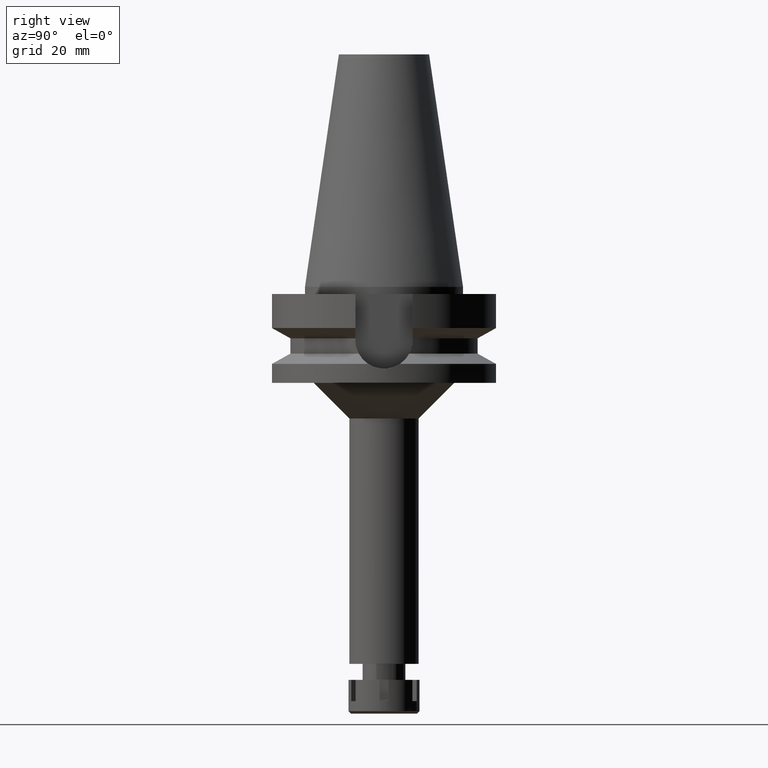
[diagram: clean part render]
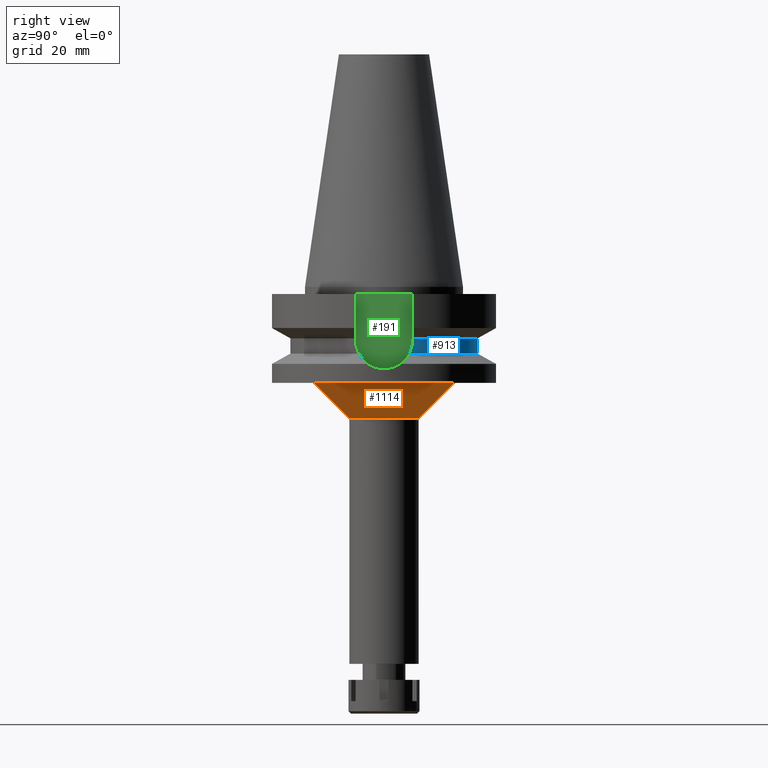
[diagram: same view with three faces highlighted in distinct colors, each labeled with its STEP entity id]
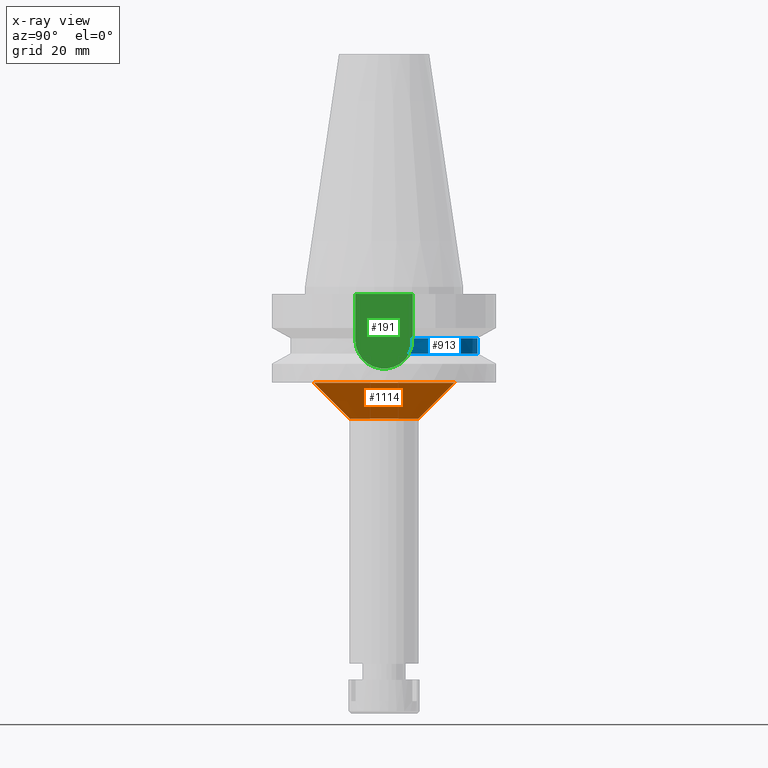
[diagram: x-ray of the same camera — body ghosted, the three highlighted faces saturated]
A machine part, right view with three faces highlighted in distinct colors.
The next image is the same camera in x-ray (body ghosted, the three faces saturated) — at least one of them is partly hidden behind the body in this view.
Their STEP definitions:

[orange] entity #1114 — the highlighted conical surface has half-angle 45 deg.
#105 = DIRECTION ( 'NONE',  ( 0.0000000000000000000, 0.0000000000000000000, 1.000000000000000000 ) ) ;
#122 = DIRECTION ( 'NONE',  ( 0.0000000000000000000, 1.000000000000000000, 0.0000000000000000000 ) ) ;
#162 = ORIENTED_EDGE ( 'NONE', *, *, #376, .T. ) ;
#190 = ORIENTED_EDGE ( 'NONE', *, *, #3637, .F. ) ;
#230 = CARTESIAN_POINT ( 'NONE',  ( 0.0000000000000000000, 0.0000000000000000000, -37.00000000000000000 ) ) ;
#365 = AXIS2_PLACEMENT_3D ( 'NONE', #2025, #3120, #2288 ) ;
#376 = EDGE_CURVE ( 'NONE', #1575, #1541, #1160, .T. ) ;
#463 = EDGE_CURVE ( 'NONE', #2571, #2239, #1796, .T. ) ;
#536 = CIRCLE ( 'NONE', #365, 19.75000000000000000 ) ;
#624 = VECTOR ( 'NONE', #664, 1000.000000000000114 ) ;
#646 = CARTESIAN_POINT ( 'NONE',  ( 0.0000000000000000000, 19.75000000000000000, -27.00000000000000000 ) ) ;
#664 = DIRECTION ( 'NONE',  ( 0.0000000000000000000, 0.7071067811865474617, -0.7071067811865474617 ) ) ;
#703 = EDGE_LOOP ( 'NONE', ( #907, #162, #190, #3432 ) ) ;
#790 = CARTESIAN_POINT ( 'NONE',  ( 0.0000000000000000000, 9.750000000000000000, -37.00000000000000000 ) ) ;
#801 = AXIS2_PLACEMENT_3D ( 'NONE', #3493, #105, #122 ) ;
#907 = ORIENTED_EDGE ( 'NONE', *, *, #2608, .T. ) ;
#1114 = ADVANCED_FACE ( 'NONE', ( #2649 ), #1870, .T. ) ;
#1160 = LINE ( 'NONE', #3145, #624 ) ;
#1215 = CIRCLE ( 'NONE', #2675, 9.750000000000000000 ) ;
#1541 = VERTEX_POINT ( 'NONE', #2778 ) ;
#1575 = VERTEX_POINT ( 'NONE', #2196 ) ;
#1753 = VECTOR ( 'NONE', #1779, 1000.000000000000114 ) ;
#1779 = DIRECTION ( 'NONE',  ( 0.0000000000000000000, -0.7071067811865474617, -0.7071067811865474617 ) ) ;
#1796 = LINE ( 'NONE', #646, #1753 ) ;
#1870 = CONICAL_SURFACE ( 'NONE', #801, 14.75000000000000000, 0.7853981633972997312 ) ;
#2025 = CARTESIAN_POINT ( 'NONE',  ( 0.0000000000000000000, 0.0000000000000000000, -27.00000000000000000 ) ) ;
#2196 = CARTESIAN_POINT ( 'NONE',  ( 0.0000000000000000000, -19.75000000000000000, -27.00000000000000000 ) ) ;
#2239 = VERTEX_POINT ( 'NONE', #790 ) ;
#2288 = DIRECTION ( 'NONE',  ( 0.0000000000000000000, 1.000000000000000000, 0.0000000000000000000 ) ) ;
#2463 = DIRECTION ( 'NONE',  ( 0.0000000000000000000, 0.0000000000000000000, -1.000000000000000000 ) ) ;
#2571 = VERTEX_POINT ( 'NONE', #2947 ) ;
#2608 = EDGE_CURVE ( 'NONE', #2571, #1575, #536, .T. ) ;
#2649 = FACE_OUTER_BOUND ( 'NONE', #703, .T. ) ;
#2675 = AXIS2_PLACEMENT_3D ( 'NONE', #230, #2463, #3288 ) ;
#2778 = CARTESIAN_POINT ( 'NONE',  ( 0.0000000000000000000, -9.750000000000000000, -37.00000000000000000 ) ) ;
#2947 = CARTESIAN_POINT ( 'NONE',  ( 0.0000000000000000000, 19.75000000000000000, -27.00000000000000000 ) ) ;
#3120 = DIRECTION ( 'NONE',  ( 0.0000000000000000000, 0.0000000000000000000, -1.000000000000000000 ) ) ;
#3145 = CARTESIAN_POINT ( 'NONE',  ( 0.0000000000000000000, -19.75000000000000000, -27.00000000000000000 ) ) ;
#3288 = DIRECTION ( 'NONE',  ( 0.0000000000000000000, 1.000000000000000000, 0.0000000000000000000 ) ) ;
#3432 = ORIENTED_EDGE ( 'NONE', *, *, #463, .F. ) ;
#3493 = CARTESIAN_POINT ( 'NONE',  ( 0.0000000000000000000, 0.0000000000000000000, -32.00000000000000000 ) ) ;
#3637 = EDGE_CURVE ( 'NONE', #2239, #1541, #1215, .T. ) ;

[blue] entity #913 — the highlighted cylindrical surface (partial cylindrical patch) has radius 26.5 mm, axis along (0, 0, -1).
#124 = CARTESIAN_POINT ( 'NONE',  ( 25.53175183775000079, 7.097862220092999941, -18.74774300138999905 ) ) ;
#126 = VERTEX_POINT ( 'NONE', #2870 ) ;
#154 = DIRECTION ( 'NONE',  ( 0.0000000000000000000, 0.0000000000000000000, 1.000000000000000000 ) ) ;
#218 = CARTESIAN_POINT ( 'NONE',  ( -25.30212858955025723, 7.877670097774115199, -16.61040846292341655 ) ) ;
#302 = ORIENTED_EDGE ( 'NONE', *, *, #2203, .F. ) ;
#339 = ORIENTED_EDGE ( 'NONE', *, *, #2919, .T. ) ;
#359 = VECTOR ( 'NONE', #2324, 1000.000000000000000 ) ;
#360 = VERTEX_POINT ( 'NONE', #1180 ) ;
#404 = CARTESIAN_POINT ( 'NONE',  ( 25.27269031700759783, 7.973298021050312379, -16.24529443263009654 ) ) ;
#420 = CARTESIAN_POINT ( 'NONE',  ( 25.24772266958000344, 8.050000000000000711, -14.94999999999999929 ) ) ;
#473 = CARTESIAN_POINT ( 'NONE',  ( 25.32549585278727022, 7.802104298501142843, -16.93243209947438643 ) ) ;
#502 = DIRECTION ( 'NONE',  ( 0.0000000000000000000, 1.000000000000000000, 0.0000000000000000000 ) ) ;
#512 = CARTESIAN_POINT ( 'NONE',  ( -25.24772266957999989, 8.050000000000016698, -15.26991016303403903 ) ) ;
#522 = VERTEX_POINT ( 'NONE', #2834 ) ;
#644 = EDGE_CURVE ( 'NONE', #522, #126, #1723, .T. ) ;
#660 = DIRECTION ( 'NONE',  ( 0.0000000000000000000, -1.000000000000000000, 0.0000000000000000000 ) ) ;
#756 = VERTEX_POINT ( 'NONE', #786 ) ;
#776 = LINE ( 'NONE', #2177, #2269 ) ;
#786 = CARTESIAN_POINT ( 'NONE',  ( -25.24772216384000245, 8.050001586170999701, -14.45224487886000020 ) ) ;
#828 = CIRCLE ( 'NONE', #2888, 26.50000000000000711 ) ;
#867 = CARTESIAN_POINT ( 'NONE',  ( -25.27268309164520232, 7.971812745166494629, -16.08115051879740420 ) ) ;
#913 = ADVANCED_FACE ( 'NONE', ( #2308 ), #2009, .T. ) ;
#1006 = CARTESIAN_POINT ( 'NONE',  ( 25.32418608982703390, 7.806352243999687524, -16.91565584311630488 ) ) ;
#1024 = CARTESIAN_POINT ( 'NONE',  ( 25.35411236305800031, 7.708864339760763684, -17.26996869602688278 ) ) ;
#1062 = CARTESIAN_POINT ( 'NONE',  ( -25.24772266958000344, 8.050000000000000711, -14.94999999999999929 ) ) ;
#1138 = CARTESIAN_POINT ( 'NONE',  ( -25.53175183775000079, 7.097862220092999941, -18.74774300138999905 ) ) ;
#1180 = CARTESIAN_POINT ( 'NONE',  ( -25.24772266958000344, 8.050000000000000711, -14.94999999999999929 ) ) ;
#1251 = CARTESIAN_POINT ( 'NONE',  ( 25.34387350812708206, 7.742366891136270191, -17.15655251595375219 ) ) ;
#1314 = DIRECTION ( 'NONE',  ( 0.0000000000000000000, 0.0000000000000000000, -1.000000000000000000 ) ) ;
#1346 = CARTESIAN_POINT ( 'NONE',  ( -25.43786288018555197, 7.435590607957213827, -18.11653926695827721 ) ) ;
#1354 = CARTESIAN_POINT ( 'NONE',  ( 0.0000000000000000000, 0.0000000000000000000, -18.74774300138999905 ) ) ;
#1416 = ORIENTED_EDGE ( 'NONE', *, *, #644, .F. ) ;
#1421 = CARTESIAN_POINT ( 'NONE',  ( -25.28048322354058541, 7.947042364867001218, -16.24399973113296980 ) ) ;
#1432 = CARTESIAN_POINT ( 'NONE',  ( 0.0000000000000000000, 2.136028947072999920E-14, 74.42000000000000171 ) ) ;
#1561 = CARTESIAN_POINT ( 'NONE',  ( 25.48481625423749364, 7.266694416798063827, -18.43220093598307230 ) ) ;
#1592 = CARTESIAN_POINT ( 'NONE',  ( -25.53175183775000079, 7.097862220092999941, -18.74774300138999905 ) ) ;
#1606 = DIRECTION ( 'NONE',  ( -1.016032954368006376E-06, -3.186650055620021452E-06, -0.9999999999944064744 ) ) ;
#1638 = EDGE_LOOP ( 'NONE', ( #3305, #2465, #1416, #339, #302, #2133 ) ) ;
#1641 = CARTESIAN_POINT ( 'NONE',  ( -25.31648570732018655, 7.831303109281309460, -16.81376729955617577 ) ) ;
#1700 = CARTESIAN_POINT ( 'NONE',  ( -25.32118071774171497, 7.816100027253767735, -16.87651110713343527 ) ) ;
#1723 = B_SPLINE_CURVE_WITH_KNOTS ( 'NONE', 3,
 ( #124, #1561, #2083, #2666, #3250, #1024, #1251, #2978, #2929, #473, #1006, #404, #2686, #420 ),
 .UNSPECIFIED., .F., .F.,
 ( 4, 2, 2, 1, 1, 2, 2, 4 ),
 ( 0.0000000000000000000, 0.2499999999999975575, 0.3749999999999975575, 0.4374999999999975575, 0.4687499999999987788, 0.4843749999999993339, 0.4999999999999998890, 1.000000000000000000 ),
 .UNSPECIFIED. ) ;
#1782 = AXIS2_PLACEMENT_3D ( 'NONE', #1354, #154, #502 ) ;
#1996 = CARTESIAN_POINT ( 'NONE',  ( -25.29452346095227000, 7.902092865024707535, -16.48827265652634111 ) ) ;
#2009 = CYLINDRICAL_SURFACE ( 'NONE', #2215, 26.50000000000000000 ) ;
#2047 = EDGE_CURVE ( 'NONE', #756, #360, #776, .T. ) ;
#2083 = CARTESIAN_POINT ( 'NONE',  ( 25.44392127699064332, 7.408263445652504053, -18.11704143288375946 ) ) ;
#2133 = ORIENTED_EDGE ( 'NONE', *, *, #2047, .F. ) ;
#2177 = CARTESIAN_POINT ( 'NONE',  ( -25.24772216384000245, 8.050001586170999701, -14.45224487886000020 ) ) ;
#2203 = EDGE_CURVE ( 'NONE', #360, #3443, #2669, .T. ) ;
#2215 = AXIS2_PLACEMENT_3D ( 'NONE', #1432, #2344, #660 ) ;
#2269 = VECTOR ( 'NONE', #1606, 1000.000000000000000 ) ;
#2308 = FACE_OUTER_BOUND ( 'NONE', #1638, .T. ) ;
#2324 = DIRECTION ( 'NONE',  ( 2.936640401732918858E-06, -9.210376286810746584E-06, 0.9999999999532726003 ) ) ;
#2344 = DIRECTION ( 'NONE',  ( 0.0000000000000000000, 0.0000000000000000000, -1.000000000000000000 ) ) ;
#2465 = ORIENTED_EDGE ( 'NONE', *, *, #2775, .F. ) ;
#2662 = CARTESIAN_POINT ( 'NONE',  ( 25.24772266958000344, 8.050000000000000711, -14.94999999999999929 ) ) ;
#2666 = CARTESIAN_POINT ( 'NONE',  ( 25.39163972051884244, 7.584838823501475424, -17.65189279967824376 ) ) ;
#2669 = B_SPLINE_CURVE_WITH_KNOTS ( 'NONE', 3,
 ( #1062, #512, #2741, #867, #1421, #1996, #218, #3088, #1641, #3330, #1700, #3052, #1346, #1138 ),
 .UNSPECIFIED., .F., .F.,
 ( 4, 2, 2, 1, 1, 2, 2, 4 ),
 ( 0.0000000000000000000, 0.2500000000000326406, 0.3750000000000489608, 0.4375000000000558997, 0.4687500000000580647, 0.4843750000000578426, 0.5000000000000576206, 1.000000000000000000 ),
 .UNSPECIFIED. ) ;
#2686 = CARTESIAN_POINT ( 'NONE',  ( 25.24772266957999989, 8.050000000000000711, -15.58995880478328999 ) ) ;
#2741 = CARTESIAN_POINT ( 'NONE',  ( -25.25396277509630139, 8.030907860997638537, -15.59359823559724312 ) ) ;
#2775 = EDGE_CURVE ( 'NONE', #126, #3234, #3177, .T. ) ;
#2834 = CARTESIAN_POINT ( 'NONE',  ( 25.53175183775000079, 7.097862220092999941, -18.74774300138999905 ) ) ;
#2870 = CARTESIAN_POINT ( 'NONE',  ( 25.24772266958000344, 8.050000000000000711, -14.94999999999999929 ) ) ;
#2888 = AXIS2_PLACEMENT_3D ( 'NONE', #3021, #1314, #2993 ) ;
#2899 = EDGE_CURVE ( 'NONE', #756, #3234, #828, .T. ) ;
#2919 = EDGE_CURVE ( 'NONE', #522, #3443, #3358, .T. ) ;
#2929 = CARTESIAN_POINT ( 'NONE',  ( 25.32843688206640920, 7.792560665373999385, -16.96962045696275467 ) ) ;
#2978 = CARTESIAN_POINT ( 'NONE',  ( 25.33291921433979610, 7.778007550393247094, -17.02550036343772888 ) ) ;
#2993 = DIRECTION ( 'NONE',  ( -0.9527442516822307583, 0.3037735849057093818, 0.0000000000000000000 ) ) ;
#3021 = CARTESIAN_POINT ( 'NONE',  ( 0.0000000000000000000, 1.065333950388000029E-14, -14.45225699861000024 ) ) ;
#3052 = CARTESIAN_POINT ( 'NONE',  ( -25.36814691286075529, 7.663833599064830970, -17.48802854141449359 ) ) ;
#3088 = CARTESIAN_POINT ( 'NONE',  ( -25.31202500689251522, 7.845732311882787968, -16.75278555880698406 ) ) ;
#3177 = LINE ( 'NONE', #2662, #359 ) ;
#3234 = VERTEX_POINT ( 'NONE', #3453 ) ;
#3250 = CARTESIAN_POINT ( 'NONE',  ( 25.37572268659466701, 7.637742846882907166, -17.49808964567741043 ) ) ;
#3305 = ORIENTED_EDGE ( 'NONE', *, *, #2899, .T. ) ;
#3330 = CARTESIAN_POINT ( 'NONE',  ( -25.31950825842965358, 7.821518470898141118, -16.85441217852998008 ) ) ;
#3358 = CIRCLE ( 'NONE', #1782, 26.50000000000000000 ) ;
#3443 = VERTEX_POINT ( 'NONE', #1592 ) ;
#3453 = CARTESIAN_POINT ( 'NONE',  ( 25.24772413117000269, 8.049995415921999964, -14.45229202694999948 ) ) ;

[green] entity #191 — the highlighted planar face has unit normal (1, 0, 0).
#27 = CARTESIAN_POINT ( 'NONE',  ( 22.50000000000000000, 0.0000000000000000000, 0.0000000000000000000 ) ) ;
#108 = VERTEX_POINT ( 'NONE', #3106 ) ;
#191 = ADVANCED_FACE ( 'NONE', ( #3384 ), #1456, .T. ) ;
#215 = EDGE_CURVE ( 'NONE', #3005, #3134, #2210, .T. ) ;
#296 = DIRECTION ( 'NONE',  ( -1.000000000000000000, 0.0000000000000000000, 0.0000000000000000000 ) ) ;
#306 = VECTOR ( 'NONE', #3007, 1000.000000000000000 ) ;
#357 = ORIENTED_EDGE ( 'NONE', *, *, #3011, .F. ) ;
#449 = LINE ( 'NONE', #1577, #306 ) ;
#555 = CIRCLE ( 'NONE', #856, 8.050000000000000711 ) ;
#587 = DIRECTION ( 'NONE',  ( 0.0000000000000000000, 1.000000000000000000, 0.0000000000000000000 ) ) ;
#707 = CARTESIAN_POINT ( 'NONE',  ( 22.50000000000000000, 8.050000000000000711, -14.94999999999999929 ) ) ;
#766 = EDGE_LOOP ( 'NONE', ( #357, #2173, #3020, #834 ) ) ;
#834 = ORIENTED_EDGE ( 'NONE', *, *, #215, .T. ) ;
#844 = DIRECTION ( 'NONE',  ( 1.000000000000000000, 0.0000000000000000000, 0.0000000000000000000 ) ) ;
#856 = AXIS2_PLACEMENT_3D ( 'NONE', #3368, #296, #2795 ) ;
#1437 = EDGE_CURVE ( 'NONE', #3005, #2021, #2682, .T. ) ;
#1449 = CARTESIAN_POINT ( 'NONE',  ( 22.50000000000000000, -8.050000000000000711, -2.000000000000000000 ) ) ;
#1456 = PLANE ( 'NONE',  #1509 ) ;
#1509 = AXIS2_PLACEMENT_3D ( 'NONE', #27, #844, #587 ) ;
#1577 = CARTESIAN_POINT ( 'NONE',  ( 22.50000000000000000, -8.050000000000000711, -14.94999999999999929 ) ) ;
#1621 = DIRECTION ( 'NONE',  ( 0.0000000000000000000, -1.000000000000000000, 0.0000000000000000000 ) ) ;
#2021 = VERTEX_POINT ( 'NONE', #707 ) ;
#2173 = ORIENTED_EDGE ( 'NONE', *, *, #2199, .F. ) ;
#2199 = EDGE_CURVE ( 'NONE', #2021, #108, #555, .T. ) ;
#2210 = LINE ( 'NONE', #2740, #3320 ) ;
#2648 = DIRECTION ( 'NONE',  ( 0.0000000000000000000, 0.0000000000000000000, -1.000000000000000000 ) ) ;
#2663 = CARTESIAN_POINT ( 'NONE',  ( 22.50000000000000000, 8.050000000000000711, -2.000000000000000000 ) ) ;
#2682 = LINE ( 'NONE', #2663, #2924 ) ;
#2740 = CARTESIAN_POINT ( 'NONE',  ( 22.50000000000000000, 8.050000000000000711, -2.000000000000000000 ) ) ;
#2795 = DIRECTION ( 'NONE',  ( 0.0000000000000000000, 1.000000000000000000, 0.0000000000000000000 ) ) ;
#2924 = VECTOR ( 'NONE', #2648, 1000.000000000000000 ) ;
#2971 = CARTESIAN_POINT ( 'NONE',  ( 22.50000000000000000, 8.050000000000000711, -2.000000000000000000 ) ) ;
#3005 = VERTEX_POINT ( 'NONE', #2971 ) ;
#3007 = DIRECTION ( 'NONE',  ( 0.0000000000000000000, 0.0000000000000000000, 1.000000000000000000 ) ) ;
#3011 = EDGE_CURVE ( 'NONE', #108, #3134, #449, .T. ) ;
#3020 = ORIENTED_EDGE ( 'NONE', *, *, #1437, .F. ) ;
#3106 = CARTESIAN_POINT ( 'NONE',  ( 22.50000000000000000, -8.050000000000000711, -14.94999999999999929 ) ) ;
#3134 = VERTEX_POINT ( 'NONE', #1449 ) ;
#3320 = VECTOR ( 'NONE', #1621, 1000.000000000000000 ) ;
#3368 = CARTESIAN_POINT ( 'NONE',  ( 22.50000000000000000, 0.0000000000000000000, -14.94999999999999929 ) ) ;
#3384 = FACE_OUTER_BOUND ( 'NONE', #766, .T. ) ;